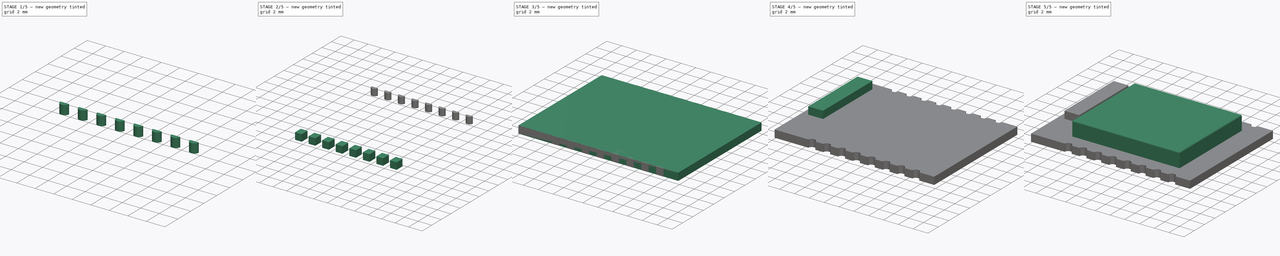
[diagram: build sequence overview — one tinted view per stage of 5, left to right]
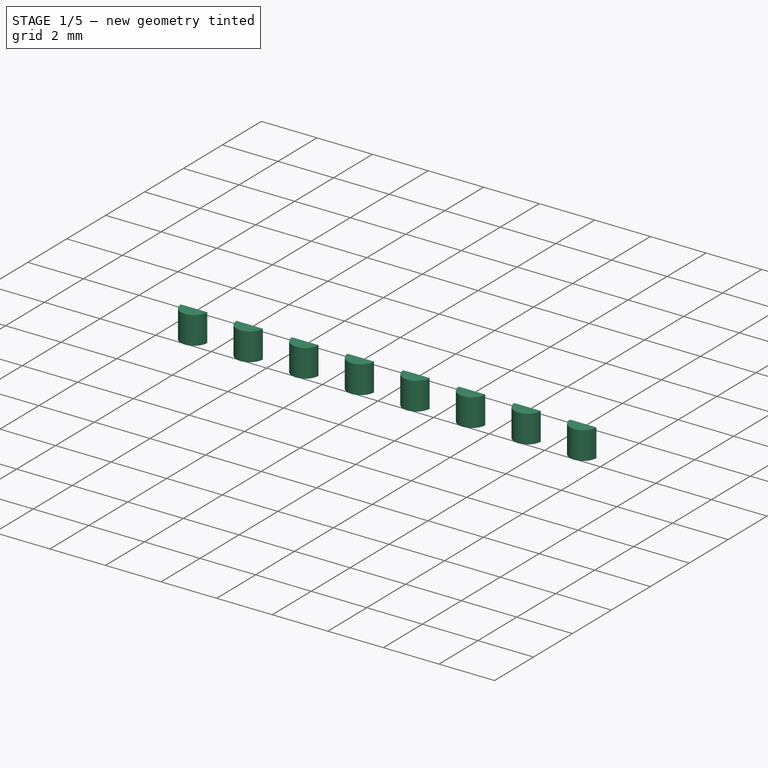
[diagram: stage 1 of 5 — iso view after this stage's code; geometry added in this stage tinted green]
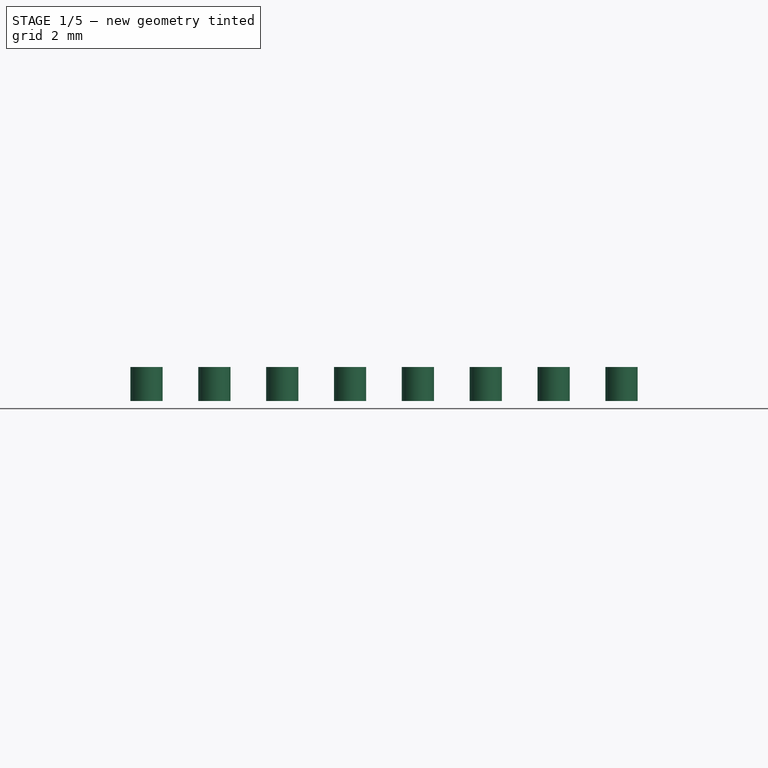
[diagram: stage 1 of 5 — front view after this stage's code; geometry added in this stage tinted green]
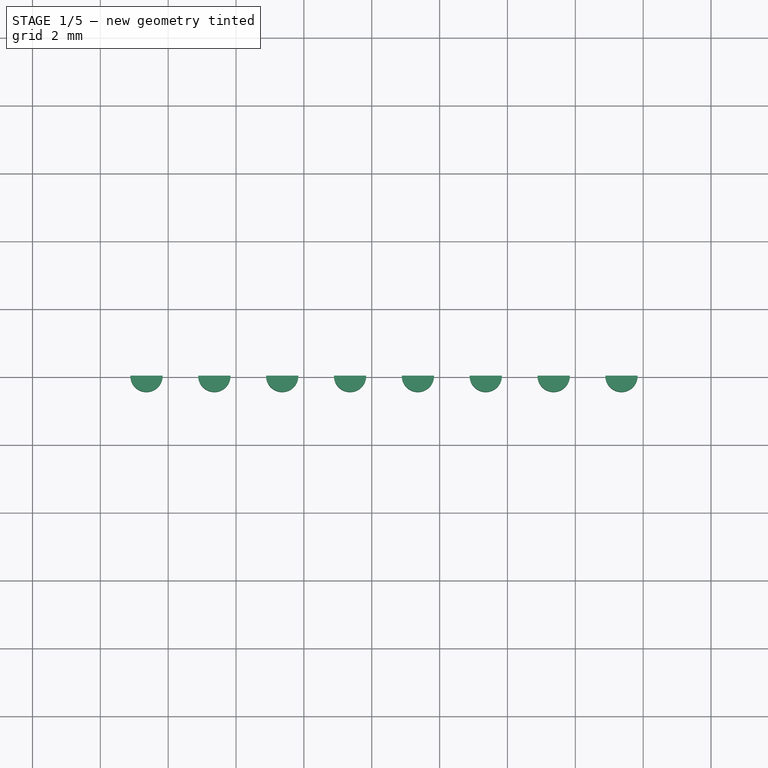
[diagram: stage 1 of 5 — top view after this stage's code; geometry added in this stage tinted green]
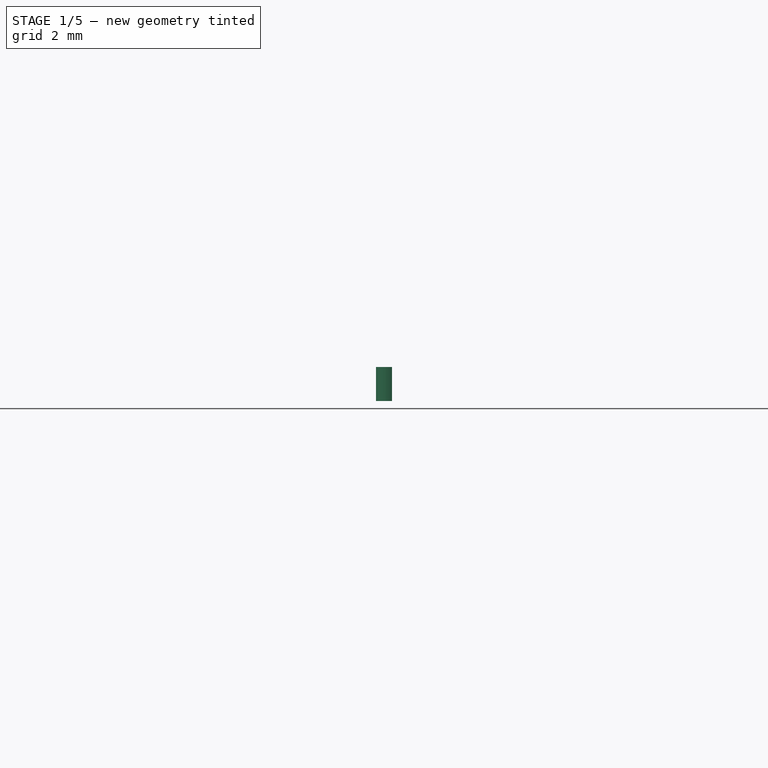
[diagram: stage 1 of 5 — right view after this stage's code; geometry added in this stage tinted green]
FCSTD DOCUMENT  (FreeCAD 0.15R4671 (Git))
Label: esp
License: All rights reserved
LicenseURL: http://en.wikipedia.org/wiki/All_rights_reserved
objects: Sketcher::SketchObject×6, PartDesign::Pad×5, Part::MultiFuse×3, Part::FeaturePython×2, Part::Mirroring×2, Part::Fillet×2, Part::Cut×1
note: 26 computed .brp shape members not serialized (recipe doc carries the construction recipe); baked Part::Feature solids carry a one-line shape summary decoded from their .brp

FEATURE [Sketcher::SketchObject] Sketch006
  sketch-geometry (2):
    g0: ArcOfCircle CenterX=-4.63899 CenterY=-8.03343 CenterZ=0 NormalX=0 NormalY=0 NormalZ=1 Radius=0.475 StartAngle=9.509e-09 EndAngle=3.14159
    g1: LineSegment StartX=-5.11399 StartY=-8.03343 StartZ=0 EndX=-4.16399 EndY=-8.03342 EndZ=0
  constraints (4):
    c: Radius(g0) = 0.475
    c: DistanceX(g1) = 0.95
    c: Coincident(g0,g1)
    c: Coincident(g0,g1)
FEATURE [PartDesign::Pad] Pad004
  Length = 1
  Length2 = 100
  Sketch = -> Sketch006
  Type = 0
FEATURE [Part::FeaturePython] Array001  # Draft array (typed FeaturePython)
  Angle = 360
  ArrayType = 0
  Axis = (0,0,1)
  Base = -> Pad004
  Center = (0,0,0)
  Fuse = false
  IntervalAxis = (0,0,0)
  IntervalX = (2,0,0)
  IntervalY = (0,1,0)
  IntervalZ = (0,0,0)
  NumberPolar = 1
  NumberX = 8
  NumberY = 1
  NumberZ = 1
FEATURE [Part::Mirroring] Part__Mirroring001  label="Array001 (Mirror #2)"
  Base = (0,0,0)
  Normal = (0,1,0)
  Source = -> Array001
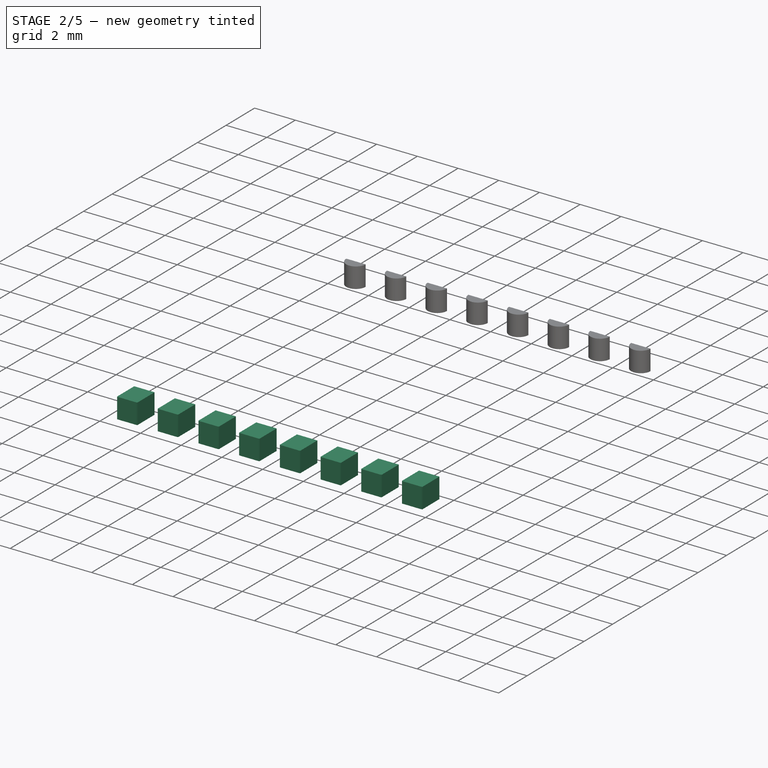
[diagram: stage 2 of 5 — iso view after this stage's code; geometry added in this stage tinted green]
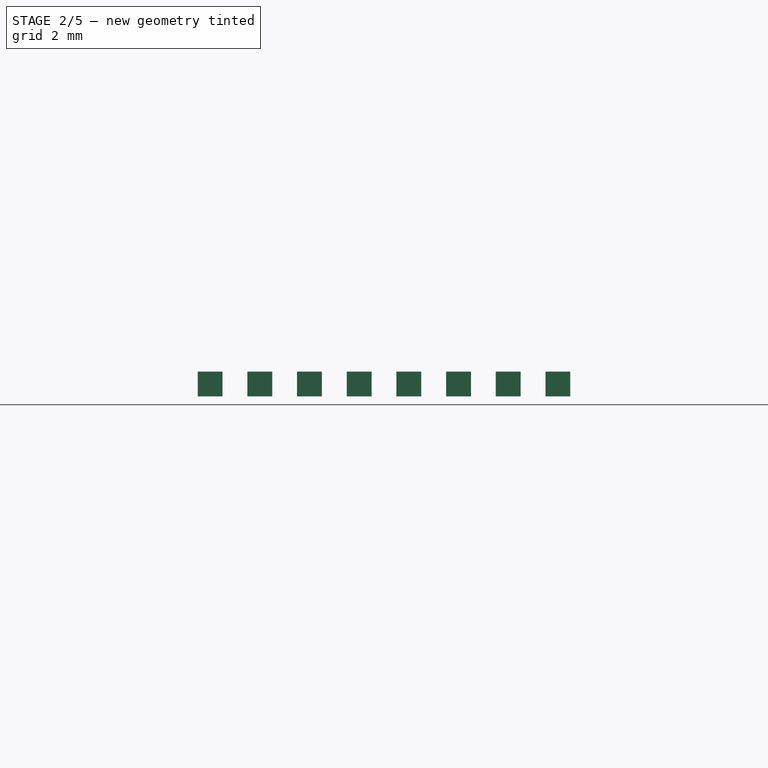
[diagram: stage 2 of 5 — front view after this stage's code; geometry added in this stage tinted green]
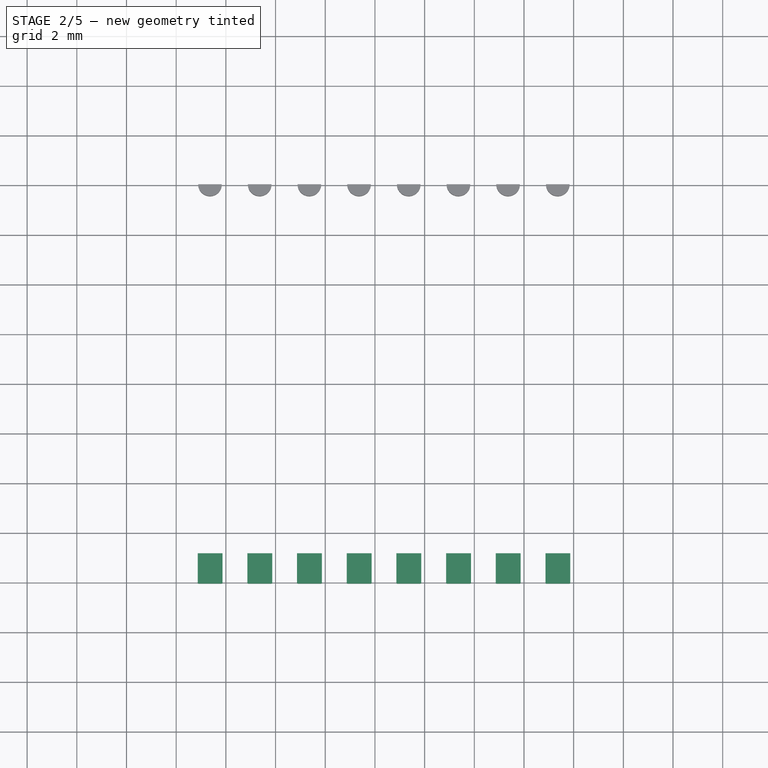
[diagram: stage 2 of 5 — top view after this stage's code; geometry added in this stage tinted green]
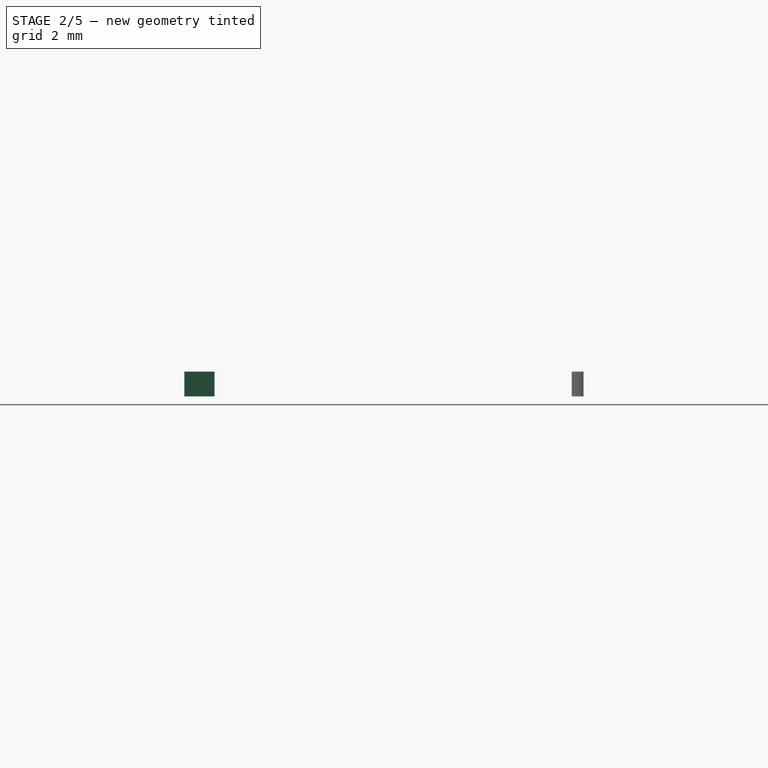
[diagram: stage 2 of 5 — right view after this stage's code; geometry added in this stage tinted green]
FEATURE [Sketcher::SketchObject] Sketch003
  sketch-geometry (4):
    g0: LineSegment StartX=-4.13492 StartY=-8.02169 StartZ=0 EndX=-5.13492 EndY=-8.02169 EndZ=0
    g1: LineSegment StartX=-5.13492 StartY=-8.02169 StartZ=0 EndX=-5.13492 EndY=-6.82169 EndZ=0
    g2: LineSegment StartX=-5.13492 StartY=-6.82169 StartZ=0 EndX=-4.13492 EndY=-6.82169 EndZ=0
    g3: LineSegment StartX=-4.13492 StartY=-6.82169 StartZ=0 EndX=-4.13492 EndY=-8.02169 EndZ=0
  constraints (10):
    c: Coincident(g0,g1)
    c: Coincident(g1,g2)
    c: Coincident(g2,g3)
    c: Coincident(g3,g0)
    c: Horizontal(g0)
    c: Horizontal(g2)
    c: Vertical(g1)
    c: Vertical(g3)
    c: DistanceX(g2) = 1
    c: DistanceY(g1) = 1.2
FEATURE [PartDesign::Pad] Pad001
  Length = 1
  Length2 = 100
  Sketch = -> Sketch003
  Type = 0
FEATURE [Part::FeaturePython] Array  # Draft array (typed FeaturePython)
  Angle = 360
  ArrayType = 0
  Axis = (0,0,1)
  Base = -> Pad001
  Center = (0,0,0)
  Fuse = false
  IntervalAxis = (0,0,0)
  IntervalX = (2,0,0)
  IntervalY = (0,1,0)
  IntervalZ = (0,0,0)
  NumberPolar = 1
  NumberX = 8
  NumberY = 0
  NumberZ = 1
FEATURE [Part::MultiFuse] Fusion002  label="padsCasArray"
  Shapes = -> [Array001,Part__Mirroring001]
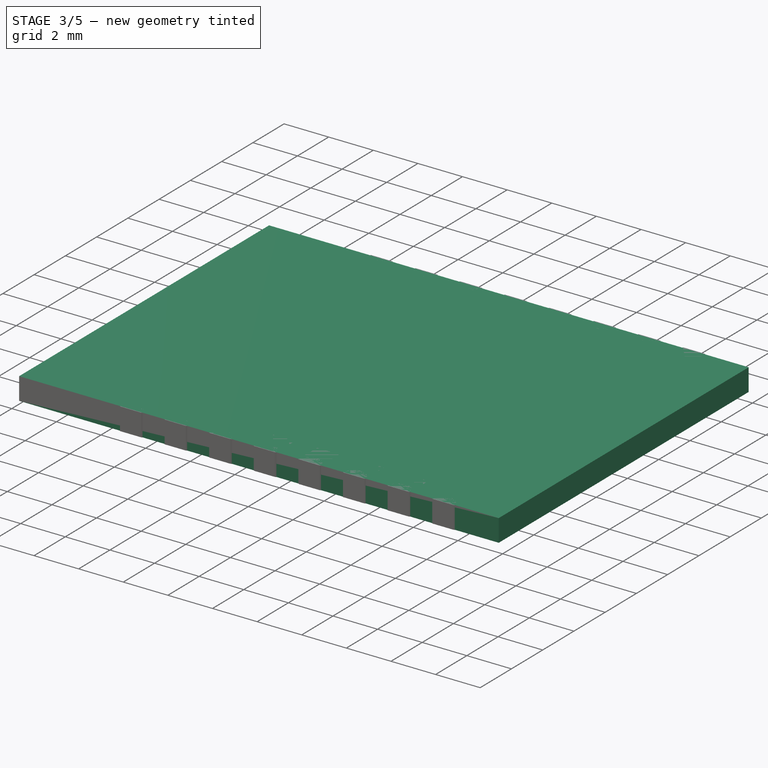
[diagram: stage 3 of 5 — iso view after this stage's code; geometry added in this stage tinted green]
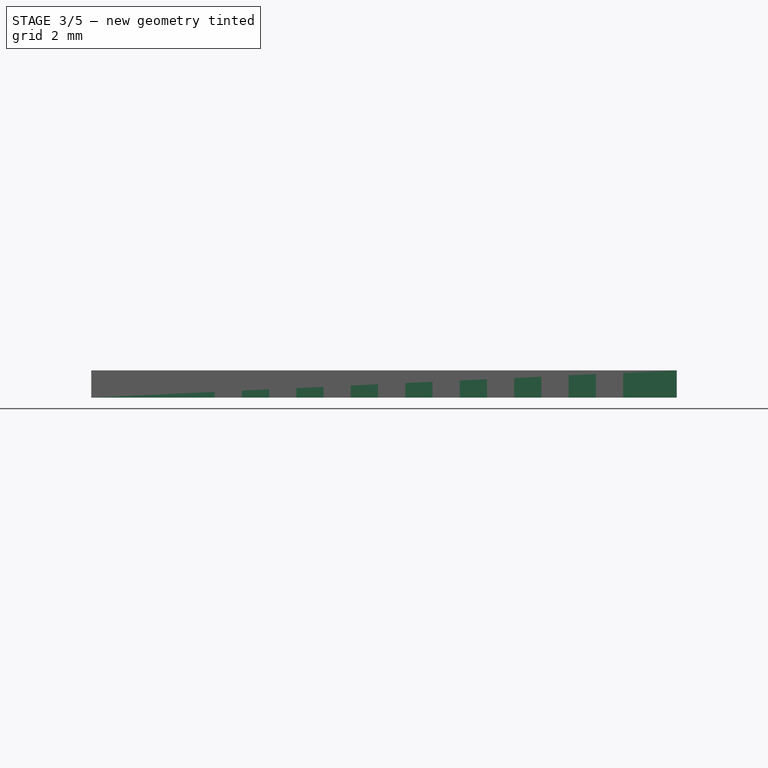
[diagram: stage 3 of 5 — front view after this stage's code; geometry added in this stage tinted green]
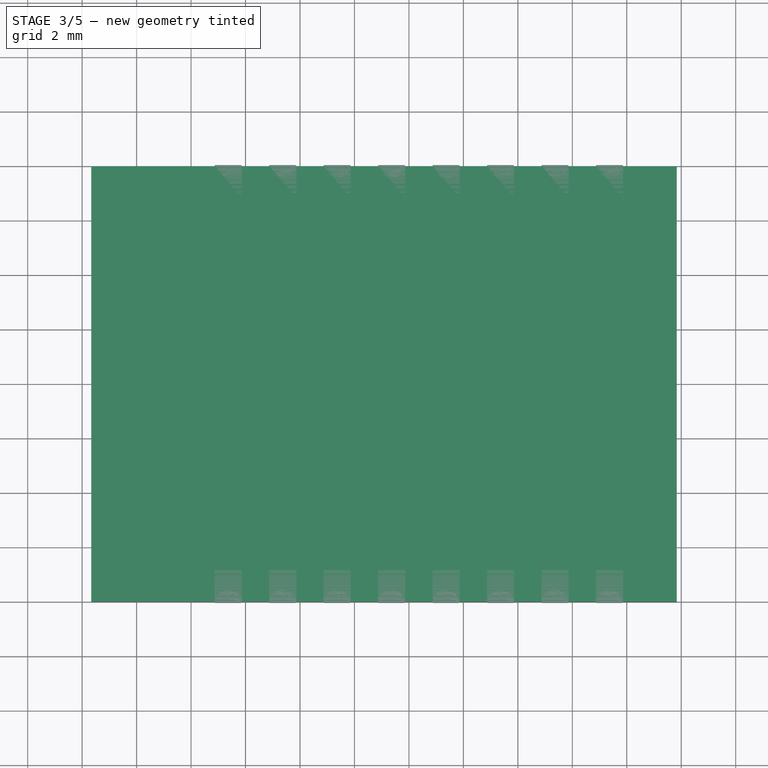
[diagram: stage 3 of 5 — top view after this stage's code; geometry added in this stage tinted green]
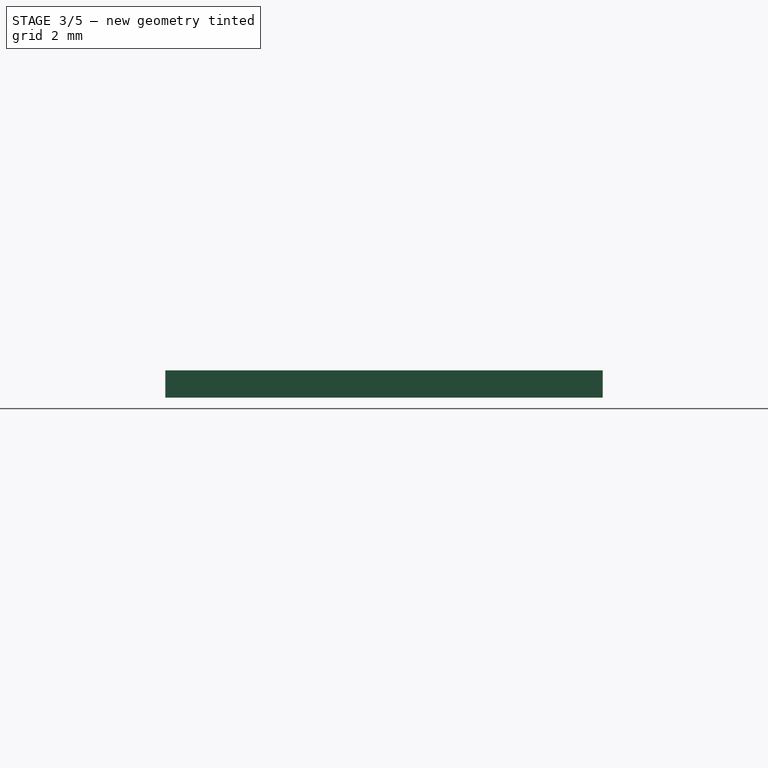
[diagram: stage 3 of 5 — right view after this stage's code; geometry added in this stage tinted green]
FEATURE [Sketcher::SketchObject] Sketch
FEATURE [Sketcher::SketchObject] Sketch001
  sketch-geometry (4):
    g0: LineSegment StartX=-9.66512 StartY=7.99377 StartZ=0 EndX=11.8349 EndY=7.99377 EndZ=0
    g1: LineSegment StartX=11.8349 StartY=7.99377 StartZ=0 EndX=11.8349 EndY=-8.00623 EndZ=0
    g2: LineSegment StartX=11.8349 StartY=-8.00623 StartZ=0 EndX=-9.66512 EndY=-8.00623 EndZ=0
    g3: LineSegment StartX=-9.66512 StartY=-8.00623 StartZ=0 EndX=-9.66512 EndY=7.99377 EndZ=0
  constraints (10):
    c: Coincident(g0,g1)
    c: Coincident(g1,g2)
    c: Coincident(g2,g3)
    c: Coincident(g3,g0)
    c: Horizontal(g0)
    c: Horizontal(g2)
    c: Vertical(g1)
    c: Vertical(g3)
    c: DistanceX(g0) = 21.5
    c: DistanceY(g1) = -16
FEATURE [PartDesign::Pad] Pad
  Length = 1
  Length2 = 100
  Sketch = -> Sketch001
  Type = 0
FEATURE [Part::Mirroring] Part__Mirroring  label="Array (Mirror #1)"
  Base = (0,0,0)
  Normal = (0,1,0)
  Source = -> Array
FEATURE [Part::MultiFuse] Fusion
  Shapes = -> [Part__Mirroring,Array]
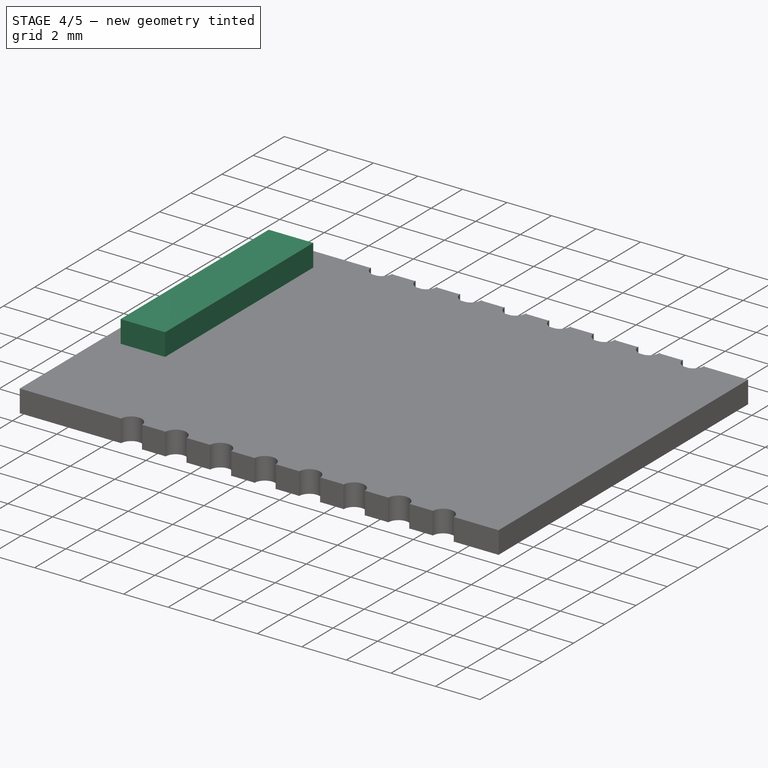
[diagram: stage 4 of 5 — iso view after this stage's code; geometry added in this stage tinted green]
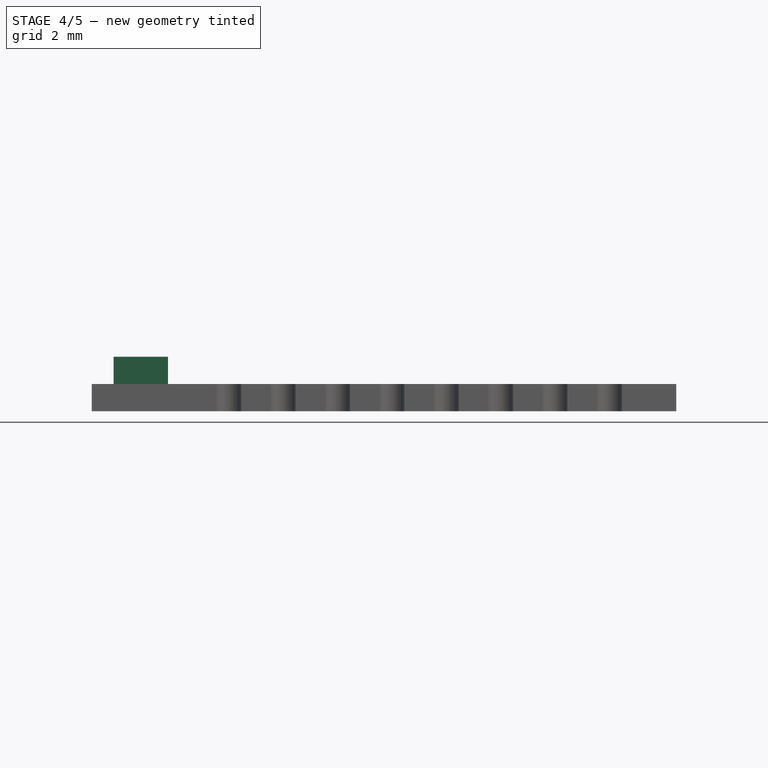
[diagram: stage 4 of 5 — front view after this stage's code; geometry added in this stage tinted green]
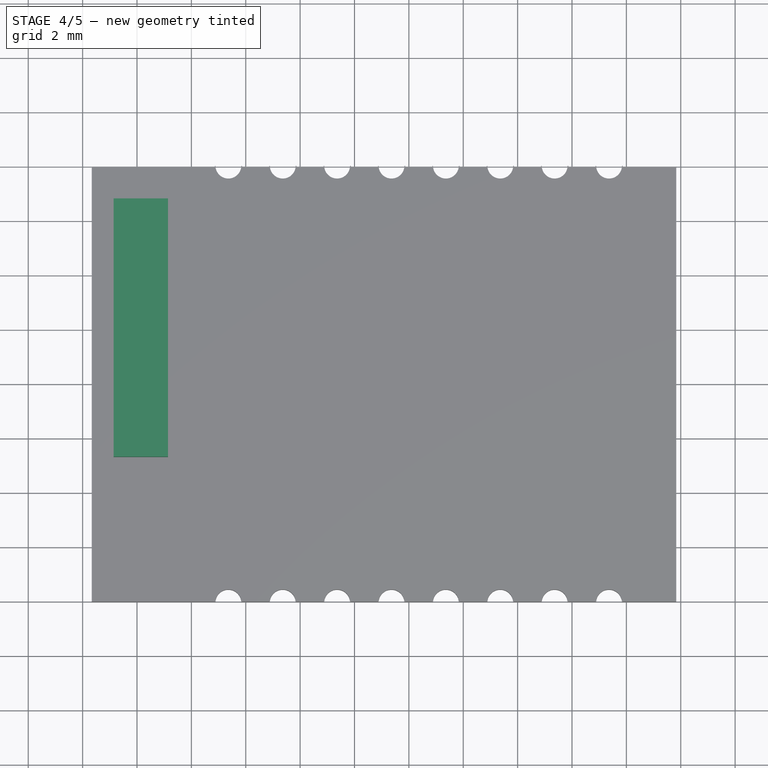
[diagram: stage 4 of 5 — top view after this stage's code; geometry added in this stage tinted green]
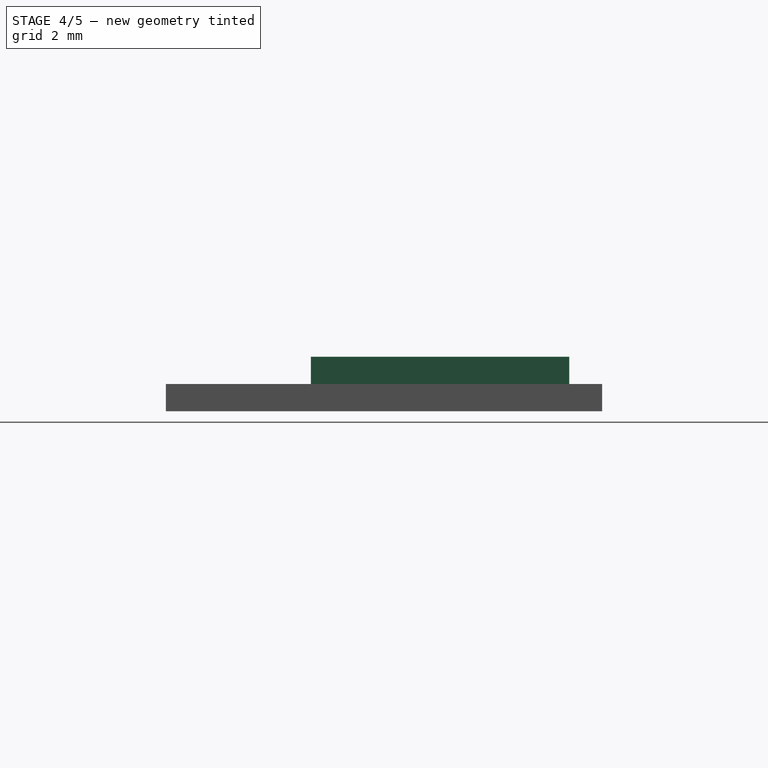
[diagram: stage 4 of 5 — right view after this stage's code; geometry added in this stage tinted green]
FEATURE [Sketcher::SketchObject] Sketch004
  Placement = pos=(0,0,1) rot=(0,0,1;0rad)
  sketch-geometry (4):
    g0: LineSegment StartX=-8.86086 StartY=6.81234 StartZ=0 EndX=-6.86086 EndY=6.81234 EndZ=0
    g1: LineSegment StartX=-6.86086 StartY=6.81234 StartZ=0 EndX=-6.86086 EndY=-2.68766 EndZ=0
    g2: LineSegment StartX=-6.86086 StartY=-2.68766 StartZ=0 EndX=-8.86086 EndY=-2.68766 EndZ=0
    g3: LineSegment StartX=-8.86086 StartY=-2.68766 StartZ=0 EndX=-8.86086 EndY=6.81234 EndZ=0
  constraints (10):
    c: Coincident(g0,g1)
    c: Coincident(g1,g2)
    c: Coincident(g2,g3)
    c: Coincident(g3,g0)
    c: Horizontal(g0)
    c: Horizontal(g2)
    c: Vertical(g1)
    c: Vertical(g3)
    c: DistanceY(g3) = 9.5
    c: DistanceX(g2) = -2
FEATURE [PartDesign::Pad] Pad002
  Length = 1
  Length2 = 100
  Placement = pos=(0,0,1) rot=(0,0,1;0rad)
  Sketch = -> Sketch004
  Type = 0
FEATURE [Part::MultiFuse] Fusion001
  Shapes = -> [Pad,Fusion]
FEATURE [Part::Cut] Cut
  Base = -> Fusion001
  Tool = -> Fusion002
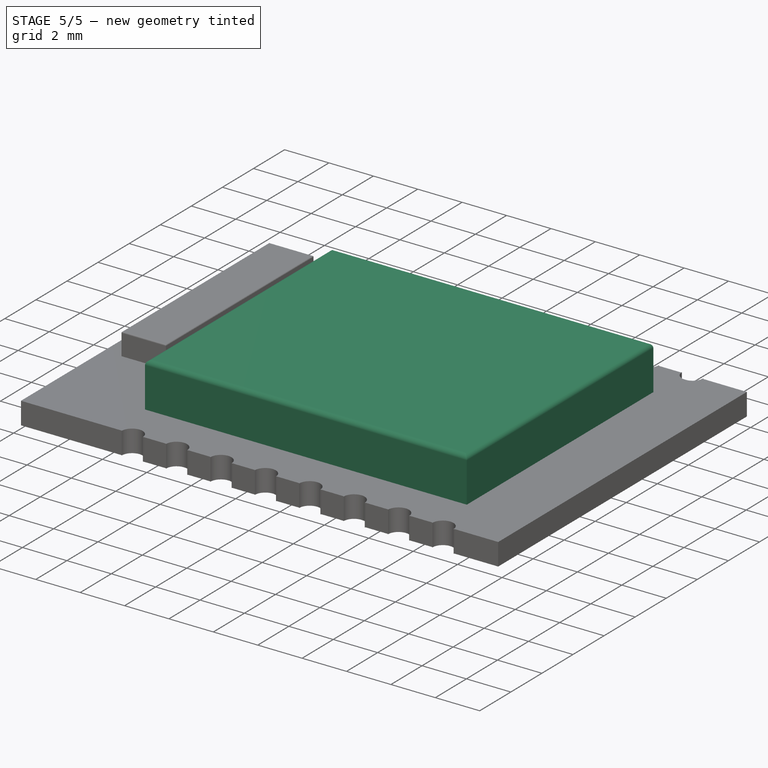
[diagram: stage 5 of 5 — iso view after this stage's code; geometry added in this stage tinted green]
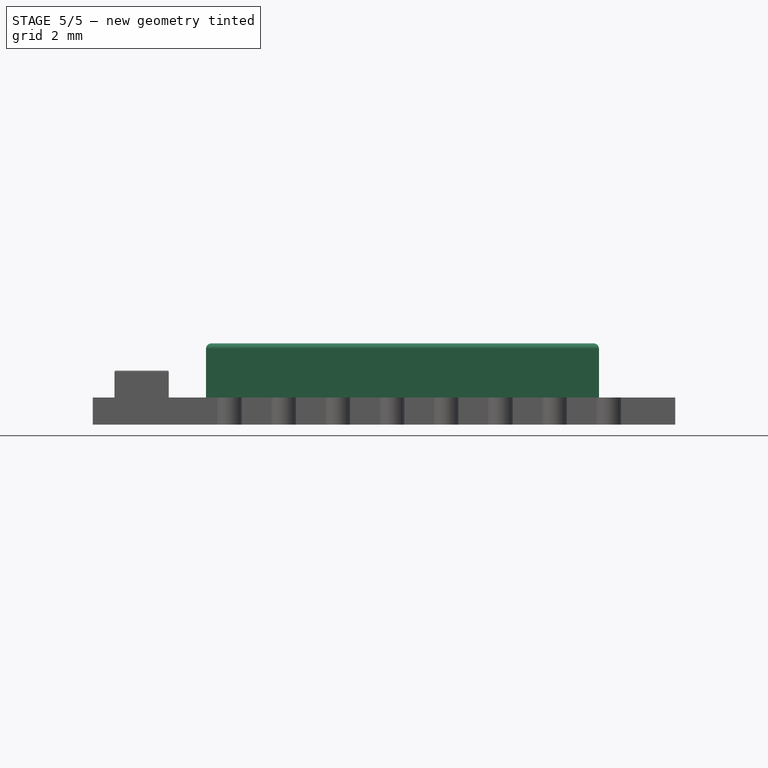
[diagram: stage 5 of 5 — front view after this stage's code; geometry added in this stage tinted green]
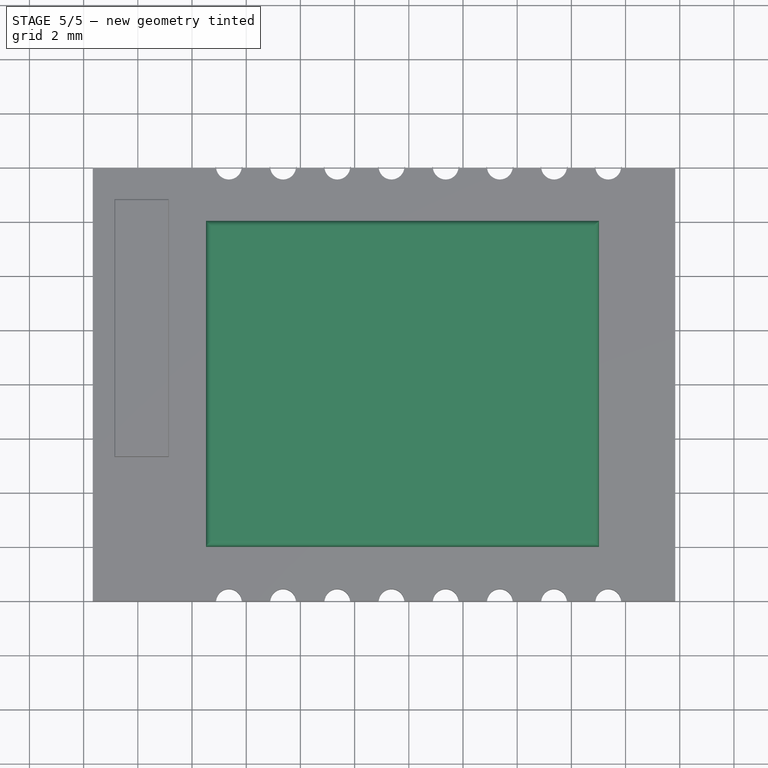
[diagram: stage 5 of 5 — top view after this stage's code; geometry added in this stage tinted green]
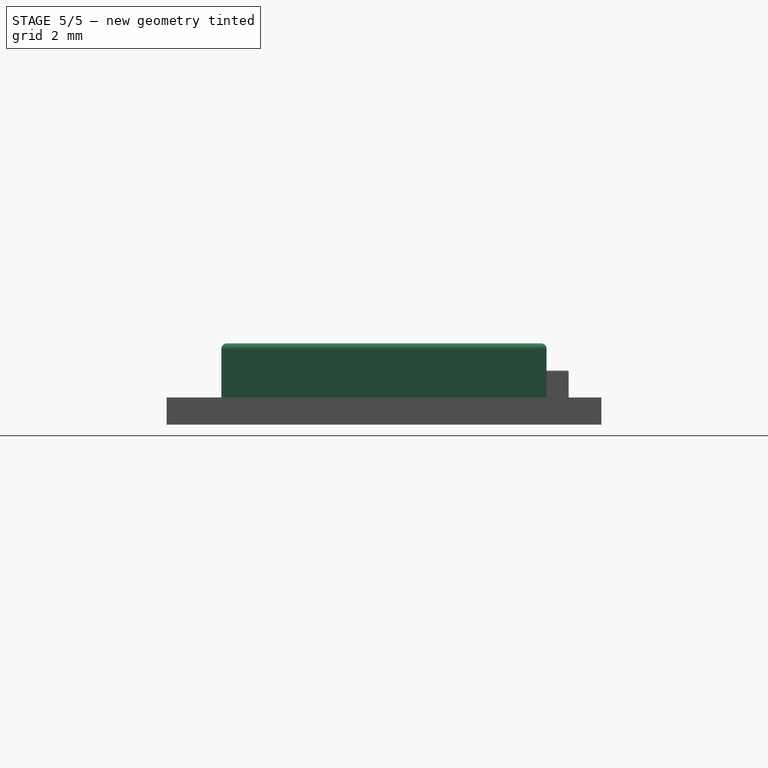
[diagram: stage 5 of 5 — right view after this stage's code; geometry added in this stage tinted green]
FEATURE [Sketcher::SketchObject] Sketch005
  Placement = pos=(0,0,1) rot=(0,0,1;0rad)
  sketch-geometry (4):
    g0: LineSegment StartX=-5.48216 StartY=5.99887 StartZ=0 EndX=9.01784 EndY=5.99887 EndZ=0
    g1: LineSegment StartX=9.01784 StartY=5.99887 StartZ=0 EndX=9.01784 EndY=-6.00113 EndZ=0
    g2: LineSegment StartX=9.01784 StartY=-6.00113 StartZ=0 EndX=-5.48216 EndY=-6.00113 EndZ=0
    g3: LineSegment StartX=-5.48216 StartY=-6.00113 StartZ=0 EndX=-5.48216 EndY=5.99887 EndZ=0
  constraints (10):
    c: Coincident(g0,g1)
    c: Coincident(g1,g2)
    c: Coincident(g2,g3)
    c: Coincident(g3,g0)
    c: Horizontal(g0)
    c: Horizontal(g2)
    c: Vertical(g1)
    c: Vertical(g3)
    c: DistanceX(g2) = -14.5
    c: DistanceY(g1) = -12
FEATURE [PartDesign::Pad] Pad003
  Length = 2
  Length2 = 100
  Placement = pos=(0,0,1) rot=(0,0,1;0rad)
  Sketch = -> Sketch005
  Type = 0
FEATURE [Part::Fillet] Fillet
  Base = -> Pad003
  Edges = 4 edges r=0.2: [Edge4,Edge7,Edge10,Edge12]
FEATURE [Part::Fillet] Fillet001
  Base = -> Pad002
  Edges = 4 edges r=0.05: [Edge4,Edge7,Edge10,Edge12]
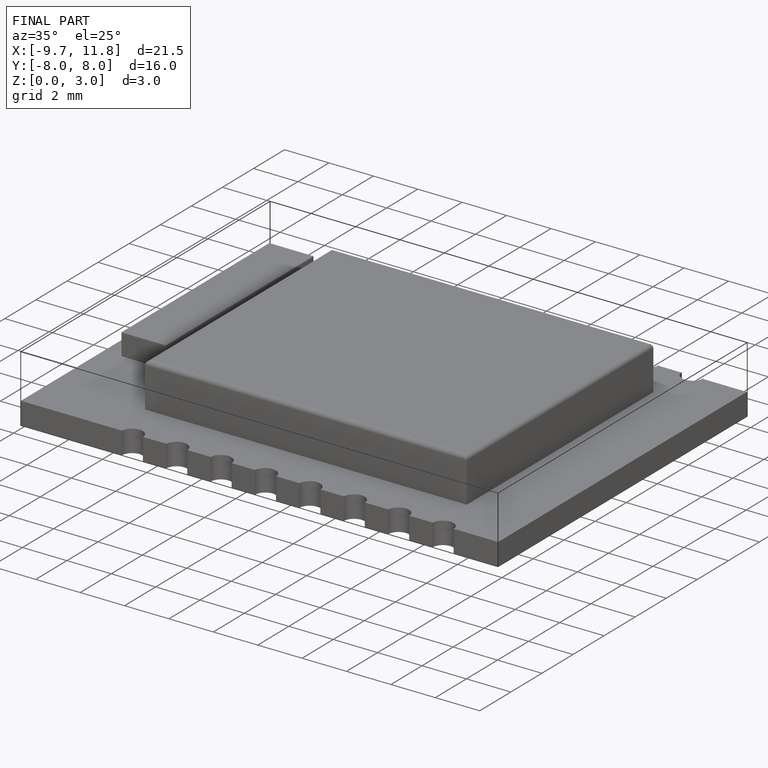
[diagram: finished part — iso view with bounding-box wireframe]
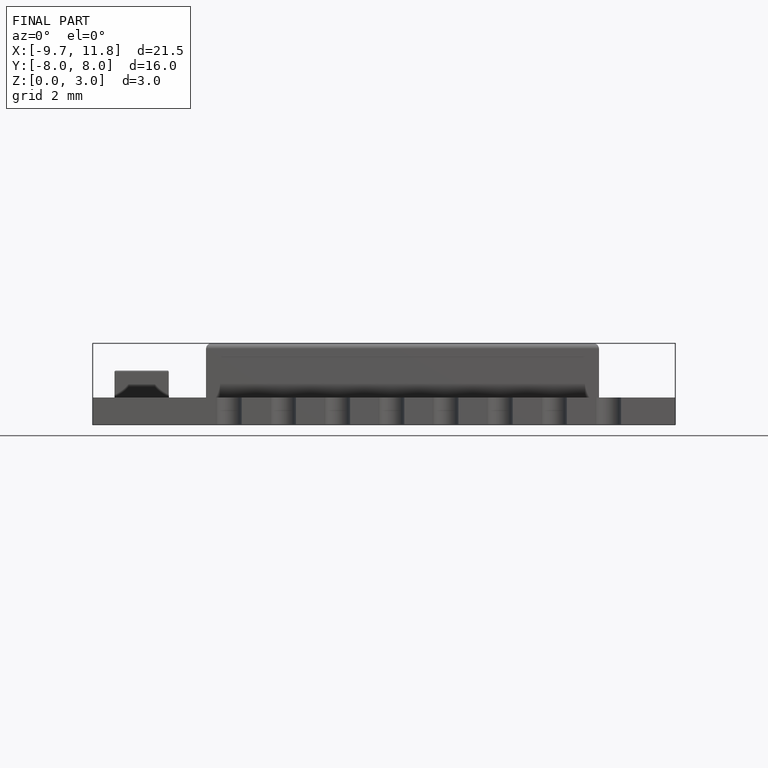
[diagram: finished part — front view with bounding-box wireframe]
